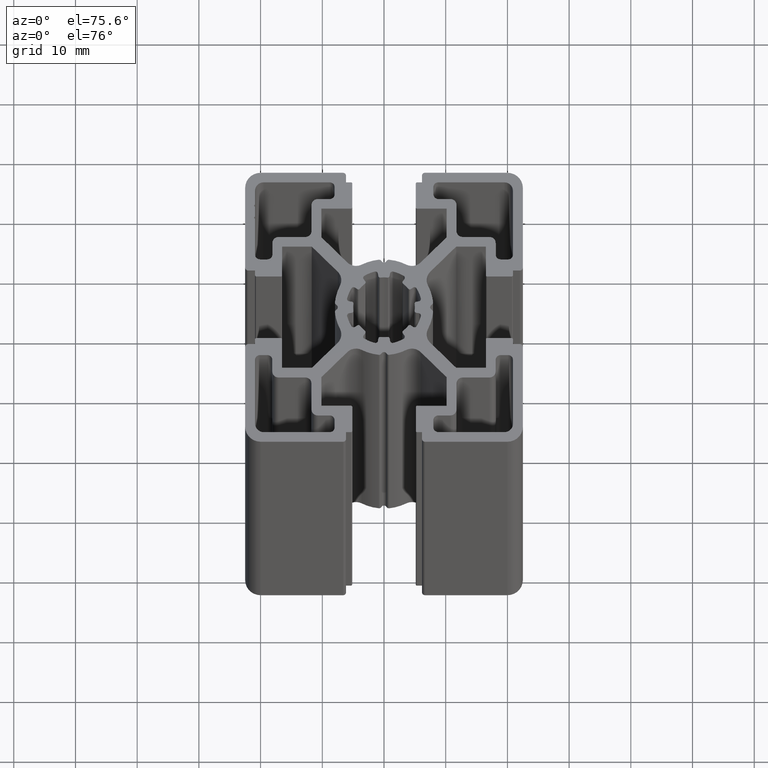
[diagram: clean part render]
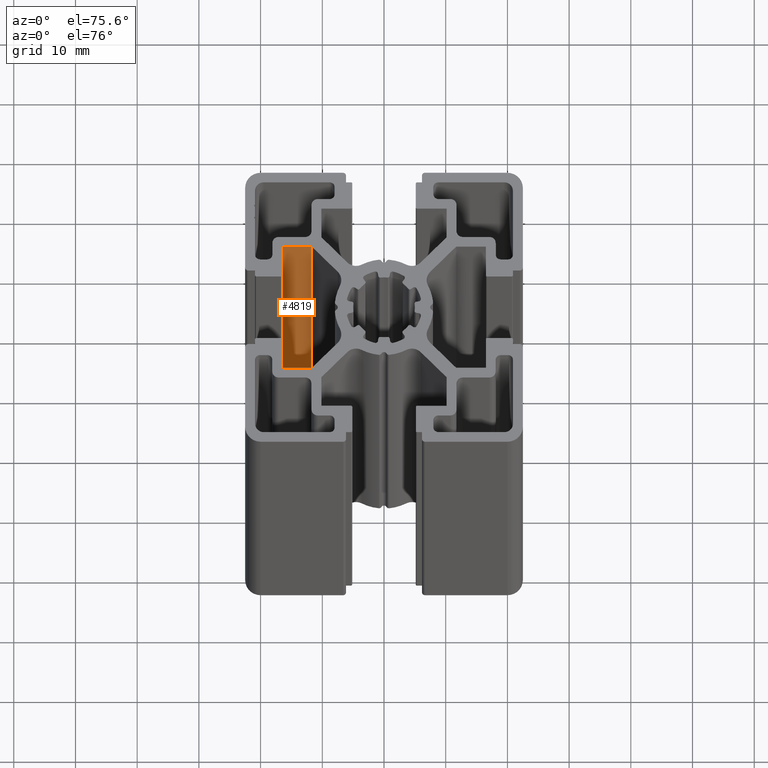
[diagram: same view with one face highlighted and labeled with its STEP entity id]
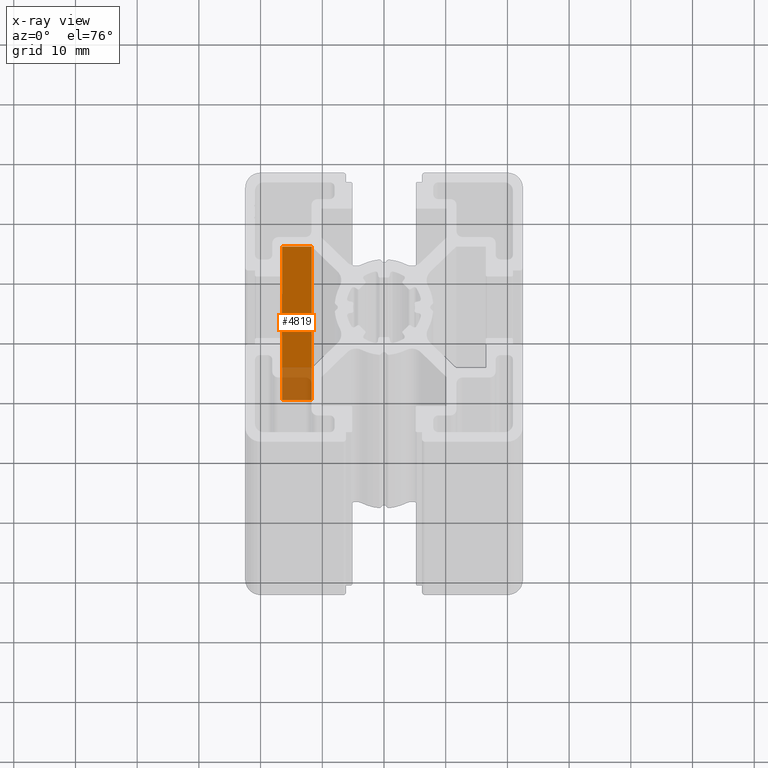
[diagram: x-ray of the same camera — body ghosted, the highlighted face saturated]
A machine part, auxiliary view. The second image highlights one B-rep face of the part: STEP entity #4819.
The next image is the same camera in x-ray: the body ghosted, the highlighted face saturated — about 21% of this face is hidden behind the body in this view.
In plain terms, the highlighted planar face has unit normal (0, 1, 0).
Its self-contained STEP definition (entity closure, byte-faithful):
#563=FACE_OUTER_BOUND('',#811,.T.);
#811=EDGE_LOOP('',(#3621,#3622,#3623,#3624));
#1168=LINE('',#7749,#1634);
#1170=LINE('',#7753,#1636);
#1171=LINE('',#7755,#1637);
#1172=LINE('',#7756,#1638);
#1634=VECTOR('',#6270,100.);
#1636=VECTOR('',#6274,4.79436499999997);
#1637=VECTOR('',#6275,100.);
#1638=VECTOR('',#6276,4.79436499999997);
#2131=VERTEX_POINT('',#7746);
#2132=VERTEX_POINT('',#7748);
#2133=VERTEX_POINT('',#7752);
#2134=VERTEX_POINT('',#7754);
#2752=EDGE_CURVE('',#2132,#2131,#1168,.T.);
#2754=EDGE_CURVE('',#2133,#2131,#1170,.T.);
#2755=EDGE_CURVE('',#2134,#2133,#1171,.T.);
#2756=EDGE_CURVE('',#2132,#2134,#1172,.T.);
#3621=ORIENTED_EDGE('',*,*,#2754,.F.);
#3622=ORIENTED_EDGE('',*,*,#2755,.F.);
#3623=ORIENTED_EDGE('',*,*,#2756,.F.);
#3624=ORIENTED_EDGE('',*,*,#2752,.T.);
#4627=PLANE('',#5229);
#4819=ADVANCED_FACE('',(#563),#4627,.F.);
#5229=AXIS2_PLACEMENT_3D('',#7751,#6272,#6273);
#6270=DIRECTION('',(0.,0.,1.));
#6272=DIRECTION('center_axis',(0.,1.,0.));
#6273=DIRECTION('ref_axis',(-1.,0.,0.));
#6274=DIRECTION('',(1.,0.,0.));
#6275=DIRECTION('',(0.,0.,1.));
#6276=DIRECTION('',(-1.,0.,0.));
#7746=CARTESIAN_POINT('',(-11.7056340409809,10.1499994126042,100.));
#7748=CARTESIAN_POINT('',(-11.7056340409809,10.1499994126042,0.));
#7749=CARTESIAN_POINT('',(-11.7056340409809,10.1499994126042,0.));
#7751=CARTESIAN_POINT('Origin',(-11.7056340409809,10.1499994126042,0.));
#7752=CARTESIAN_POINT('',(-16.4999990409808,10.1499994126042,100.));
#7753=CARTESIAN_POINT('',(-5.85281702049043,10.1499994126042,100.));
#7754=CARTESIAN_POINT('',(-16.4999990409808,10.1499994126042,0.));
#7755=CARTESIAN_POINT('',(-16.4999990409808,10.1499994126042,0.));
#7756=CARTESIAN_POINT('',(-5.85281702049043,10.1499994126042,0.));